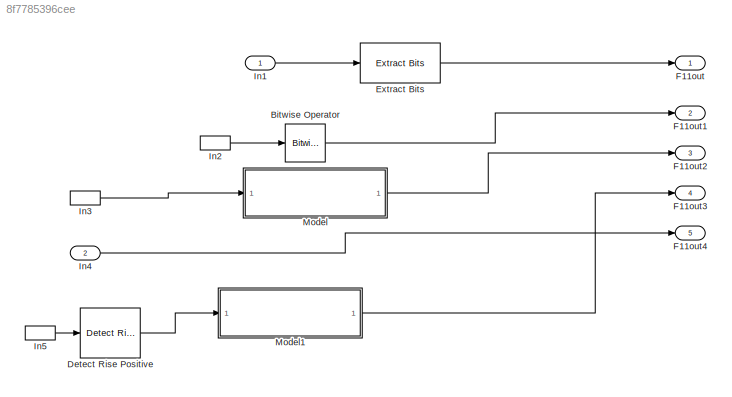
MODEL slx_8f7785396cee
KIND model
CONFIG AbsTol = auto
CONFIG EnableMultiTasking = off
CONFIG FixedStep = auto
CONFIG MaxStep = auto
CONFIG MinStep = auto
CONFIG RelTol = 1e-3
CONFIG SampleTimeConstraint = Unconstrained
CONFIG SolverName = VariableStepAuto
CONFIG StartTime = 0.0
CONFIG StopTime = 10.0
BLOCK [Reference] Bitwise Operator  REF=simulink/Logic and Bit
Operations/Bitwise
Operator
  Ports = [1, 1]
  SourceBlock = simulink/Logic and Bit\nOperations/Bitwise\nOperator
  SourceProductBaseCode = SL
  SourceType = Bitwise Operator
BLOCK [Reference] Detect Rise Positive  REF=simulink/Logic and Bit
Operations/Detect Rise
Positive
  Ports = [1, 1]
  SourceBlock = simulink/Logic and Bit\nOperations/Detect Rise\nPositive
  SourceProductBaseCode = SL
  SourceType = Detect Rise Positive
BLOCK [Reference] Extract Bits  REF=simulink/Logic and Bit
Operations/Extract Bits
  Ports = [1, 1]
  SourceBlock = simulink/Logic and Bit\nOperations/Extract Bits
  SourceProductBaseCode = SL
  SourceType = Extract Bits
BLOCK [Outport] F11out
BLOCK [Outport] F11out1
  Port = 2
BLOCK [Outport] F11out2
  Port = 3
BLOCK [Outport] F11out3
  Port = 4
BLOCK [Outport] F11out4
  Port = 5
BLOCK [Inport] In1
BLOCK [InportShadow] In2
BLOCK [InportShadow] In3
BLOCK [Inport] In4
  Port = 2
BLOCK [InportShadow] In5
BLOCK [ModelReference] Model
  ModelNameDialog = logic111.slx
  ModelReferenceVersion = 1.8
  Ports = [1, 1]
BLOCK [ModelReference] Model1
  ModelNameDialog = Logic112
  ModelReferenceVersion = 1.2
  Ports = [1, 1]
LINE Bitwise Operator:1 -> F11out1:1
LINE Detect Rise Positive:1 -> Model1:1
LINE Extract Bits:1 -> F11out:1
LINE In1:1 -> Extract Bits:1
LINE In2:1 -> Bitwise Operator:1
LINE In3:1 -> Model:1
LINE In4:1 -> F11out4:1
LINE In5:1 -> Detect Rise Positive:1
LINE Model1:1 -> F11out3:1
LINE Model:1 -> F11out2:1
